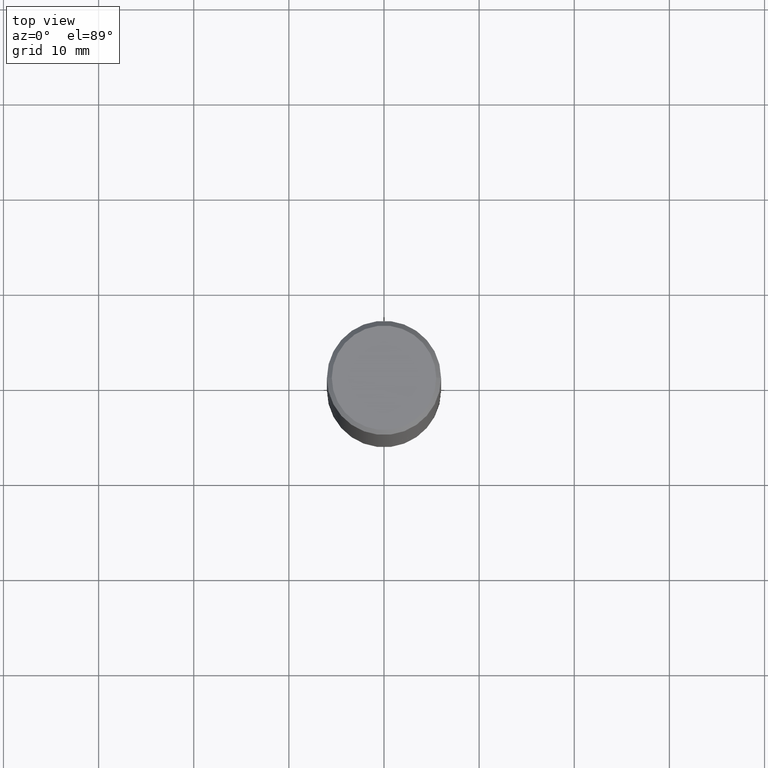
[diagram: clean part render]
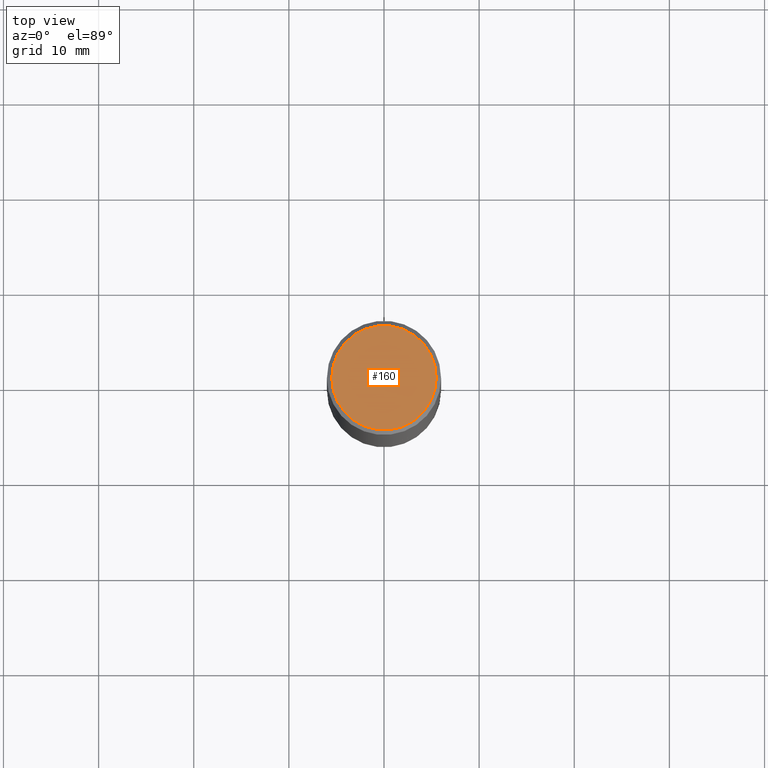
[diagram: same view with one face highlighted and labeled with its STEP entity id]
A machine part, top view. The second image highlights one B-rep face of the part: STEP entity #160.
In plain terms, the highlighted planar face has unit normal (0, -0, -1).
Its self-contained STEP definition (entity closure, byte-faithful):
#2 = AXIS2_PLACEMENT_3D ( 'NONE', #361, #340, #35 ) ;
#17 = AXIS2_PLACEMENT_3D ( 'NONE', #330, #338, #315 ) ;
#35 = DIRECTION ( 'NONE',  ( 1.000000000000000000, -6.982962677686266711E-15, 4.875778670202492554E-29 ) ) ;
#101 = CARTESIAN_POINT ( 'NONE',  ( 0.2161999999999996980, -1.586759460484350016E-15, 8.537024980211650906E-18 ) ) ;
#109 = PLANE ( 'NONE',  #130 ) ;
#120 = CARTESIAN_POINT ( 'NONE',  ( -0.2161999999999996980, 1.544631344304200000E-15, 8.537024980190142121E-18 ) ) ;
#122 = VERTEX_POINT ( 'NONE', #101 ) ;
#130 = AXIS2_PLACEMENT_3D ( 'NONE', #354, #223, #328 ) ;
#160 = ADVANCED_FACE ( 'NONE', ( #359 ), #109, .F. ) ;
#166 = CIRCLE ( 'NONE', #2, 0.2161999999999996980 ) ;
#167 = EDGE_CURVE ( 'NONE', #309, #122, #206, .T. ) ;
#206 = CIRCLE ( 'NONE', #17, 0.2161999999999996980 ) ;
#210 = ORIENTED_EDGE ( 'NONE', *, *, #167, .T. ) ;
#216 = EDGE_CURVE ( 'NONE', #122, #309, #166, .T. ) ;
#223 = DIRECTION ( 'NONE',  ( 2.438088387897960049E-29, -3.491481338843145188E-15, -1.000000000000000000 ) ) ;
#234 = ORIENTED_EDGE ( 'NONE', *, *, #216, .T. ) ;
#253 = EDGE_LOOP ( 'NONE', ( #210, #234 ) ) ;
#309 = VERTEX_POINT ( 'NONE', #120 ) ;
#315 = DIRECTION ( 'NONE',  ( 1.000000000000000000, -6.982962677686266711E-15, 4.875778670202492554E-29 ) ) ;
#328 = DIRECTION ( 'NONE',  ( -1.000000000000000000, 6.982962677686265922E-15, -4.876176775795935793E-29 ) ) ;
#330 = CARTESIAN_POINT ( 'NONE',  ( -2.087702828670439639E-46, 2.980686340760894400E-32, 8.537024980200822558E-18 ) ) ;
#338 = DIRECTION ( 'NONE',  ( -2.445468806185136597E-29, 3.491481338843145583E-15, 1.000000000000000000 ) ) ;
#340 = DIRECTION ( 'NONE',  ( -2.445468806185136597E-29, 3.491481338843145583E-15, 1.000000000000000000 ) ) ;
#354 = CARTESIAN_POINT ( 'NONE',  ( 1.509716530915768548E-15, 0.2161999999999996980, -7.505897529677867071E-16 ) ) ;
#359 = FACE_OUTER_BOUND ( 'NONE', #253, .T. ) ;
#361 = CARTESIAN_POINT ( 'NONE',  ( -2.087702828670439639E-46, 2.980686340760894400E-32, 8.537024980200822558E-18 ) ) ;